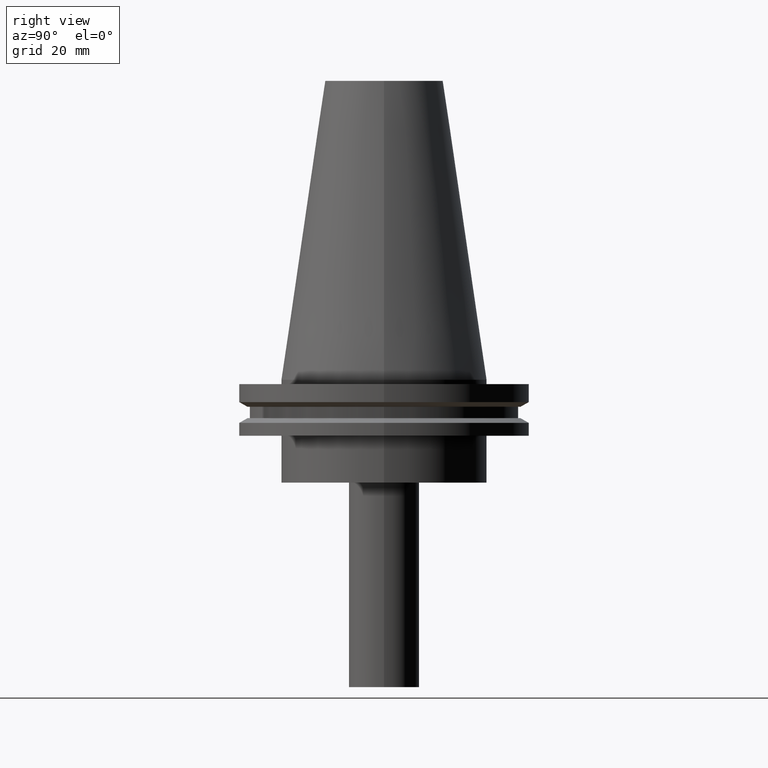
[diagram: clean part render]
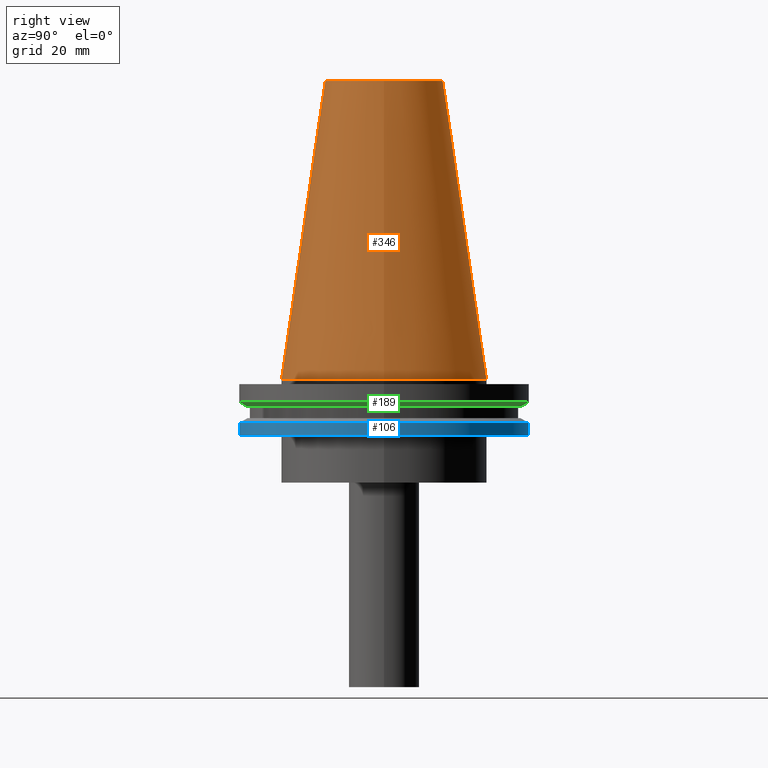
[diagram: same view with three faces highlighted in distinct colors, each labeled with its STEP entity id]
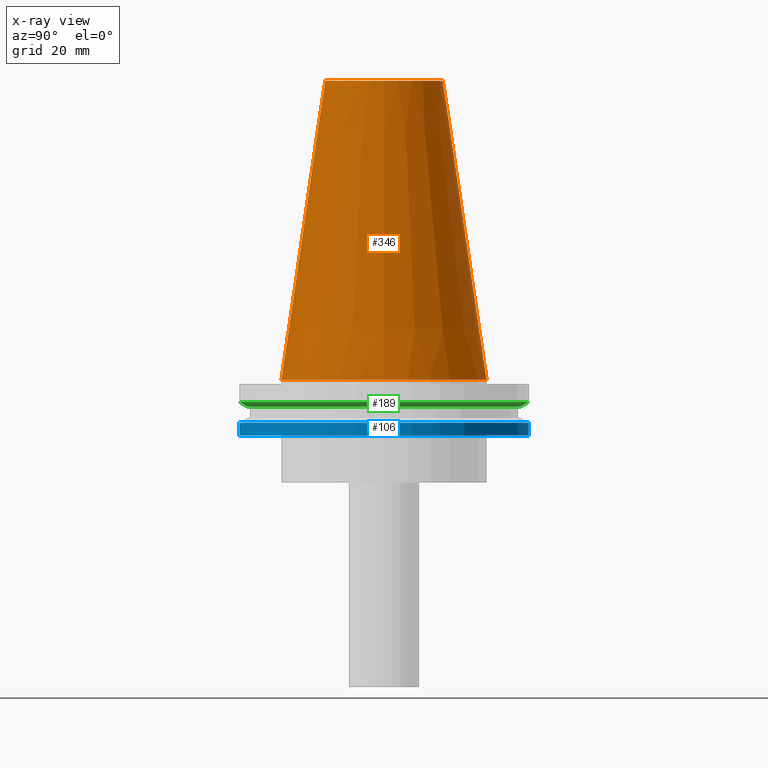
[diagram: x-ray of the same camera — body ghosted, the three highlighted faces saturated]
A machine part, right view with three faces highlighted in distinct colors.
The next image is the same camera in x-ray (body ghosted, the three faces saturated) — at least one of them is partly hidden behind the body in this view.
Their STEP definitions:

[orange] entity #346 — the highlighted conical surface has half-angle 8.297 deg.
#13 = CIRCLE ( 'NONE', #75, 34.92499999999999005 ) ;
#14 = CARTESIAN_POINT ( 'NONE',  ( 0.000000000000000000, 0.000000000000000000, 0.000000000000000000 ) ) ;
#20 = CARTESIAN_POINT ( 'NONE',  ( 34.92499999999999005, 0.000000000000000000, 0.000000000000000000 ) ) ;
#39 = CIRCLE ( 'NONE', #383, 20.10819343178871321 ) ;
#75 = AXIS2_PLACEMENT_3D ( 'NONE', #88, #264, #202 ) ;
#88 = CARTESIAN_POINT ( 'NONE',  ( 0.000000000000000000, 0.000000000000000000, 0.000000000000000000 ) ) ;
#91 = EDGE_LOOP ( 'NONE', ( #93 ) ) ;
#93 = ORIENTED_EDGE ( 'NONE', *, *, #375, .T. ) ;
#120 = AXIS2_PLACEMENT_3D ( 'NONE', #14, #227, #323 ) ;
#133 = EDGE_CURVE ( 'NONE', #141, #141, #39, .T. ) ;
#141 = VERTEX_POINT ( 'NONE', #258 ) ;
#192 = DIRECTION ( 'NONE',  ( -0.000000000000000000, -0.000000000000000000, 1.000000000000000000 ) ) ;
#202 = DIRECTION ( 'NONE',  ( 1.000000000000000000, 0.000000000000000000, 0.000000000000000000 ) ) ;
#227 = DIRECTION ( 'NONE',  ( 0.000000000000000000, 0.000000000000000000, -1.000000000000000000 ) ) ;
#230 = FACE_OUTER_BOUND ( 'NONE', #91, .T. ) ;
#240 = VERTEX_POINT ( 'NONE', #20 ) ;
#249 = CONICAL_SURFACE ( 'NONE', #120, 34.92499999999999005, 0.1448138465474119452 ) ;
#257 = DIRECTION ( 'NONE',  ( 1.000000000000000000, 0.000000000000000000, 0.000000000000000000 ) ) ;
#258 = CARTESIAN_POINT ( 'NONE',  ( 20.10819343178871321, 0.000000000000000000, 101.5999999999999801 ) ) ;
#264 = DIRECTION ( 'NONE',  ( -0.000000000000000000, -0.000000000000000000, 1.000000000000000000 ) ) ;
#290 = FACE_BOUND ( 'NONE', #358, .T. ) ;
#317 = CARTESIAN_POINT ( 'NONE',  ( 0.000000000000000000, 0.000000000000000000, 101.5999999999999801 ) ) ;
#323 = DIRECTION ( 'NONE',  ( -1.000000000000000000, 0.000000000000000000, 0.000000000000000000 ) ) ;
#346 = ADVANCED_FACE ( 'NONE', ( #290, #230 ), #249, .T. ) ;
#358 = EDGE_LOOP ( 'NONE', ( #381 ) ) ;
#375 = EDGE_CURVE ( 'NONE', #240, #240, #13, .T. ) ;
#381 = ORIENTED_EDGE ( 'NONE', *, *, #133, .F. ) ;
#383 = AXIS2_PLACEMENT_3D ( 'NONE', #317, #192, #257 ) ;

[blue] entity #106 — the highlighted cylindrical surface (bore or boss wall) has radius 49.215 mm, axis along (-0, -0, 1).
#9 = CYLINDRICAL_SURFACE ( 'NONE', #208, 49.21499999999998920 ) ;
#16 = DIRECTION ( 'NONE',  ( -0.000000000000000000, -0.000000000000000000, 1.000000000000000000 ) ) ;
#23 = CIRCLE ( 'NONE', #167, 49.21499999999998920 ) ;
#78 = CARTESIAN_POINT ( 'NONE',  ( 0.000000000000000000, 0.000000000000000000, -19.04999999999999716 ) ) ;
#84 = ORIENTED_EDGE ( 'NONE', *, *, #292, .F. ) ;
#92 = CARTESIAN_POINT ( 'NONE',  ( 49.21499999999998920, 0.000000000000000000, -19.04999999999999716 ) ) ;
#106 = ADVANCED_FACE ( 'NONE', ( #285, #165 ), #9, .T. ) ;
#112 = CARTESIAN_POINT ( 'NONE',  ( 0.000000000000000000, 0.000000000000000000, -14.65761014474876944 ) ) ;
#131 = CARTESIAN_POINT ( 'NONE',  ( 0.000000000000000000, 0.000000000000000000, 101.5999999999999943 ) ) ;
#165 = FACE_OUTER_BOUND ( 'NONE', #304, .T. ) ;
#167 = AXIS2_PLACEMENT_3D ( 'NONE', #78, #349, #170 ) ;
#168 = DIRECTION ( 'NONE',  ( 1.000000000000000000, 0.000000000000000000, 0.000000000000000000 ) ) ;
#170 = DIRECTION ( 'NONE',  ( 1.000000000000000000, 0.000000000000000000, 0.000000000000000000 ) ) ;
#201 = ORIENTED_EDGE ( 'NONE', *, *, #339, .T. ) ;
#208 = AXIS2_PLACEMENT_3D ( 'NONE', #131, #343, #225 ) ;
#225 = DIRECTION ( 'NONE',  ( 1.000000000000000000, 0.000000000000000000, 0.000000000000000000 ) ) ;
#285 = FACE_OUTER_BOUND ( 'NONE', #392, .T. ) ;
#292 = EDGE_CURVE ( 'NONE', #305, #305, #319, .T. ) ;
#296 = VERTEX_POINT ( 'NONE', #92 ) ;
#304 = EDGE_LOOP ( 'NONE', ( #201 ) ) ;
#305 = VERTEX_POINT ( 'NONE', #357 ) ;
#319 = CIRCLE ( 'NONE', #368, 49.21499999999998920 ) ;
#339 = EDGE_CURVE ( 'NONE', #296, #296, #23, .T. ) ;
#343 = DIRECTION ( 'NONE',  ( -0.000000000000000000, -0.000000000000000000, 1.000000000000000000 ) ) ;
#349 = DIRECTION ( 'NONE',  ( -0.000000000000000000, -0.000000000000000000, 1.000000000000000000 ) ) ;
#357 = CARTESIAN_POINT ( 'NONE',  ( 49.21499999999998920, 0.000000000000000000, -14.65761014474876944 ) ) ;
#368 = AXIS2_PLACEMENT_3D ( 'NONE', #112, #16, #168 ) ;
#392 = EDGE_LOOP ( 'NONE', ( #84 ) ) ;

[green] entity #189 — the highlighted conical surface has half-angle 60 deg.
#22 = VERTEX_POINT ( 'NONE', #298 ) ;
#33 = AXIS2_PLACEMENT_3D ( 'NONE', #146, #144, #261 ) ;
#41 = CIRCLE ( 'NONE', #241, 49.21500000000000341 ) ;
#67 = DIRECTION ( 'NONE',  ( 1.000000000000000000, 0.000000000000000000, 0.000000000000000000 ) ) ;
#71 = EDGE_CURVE ( 'NONE', #119, #119, #41, .T. ) ;
#76 = DIRECTION ( 'NONE',  ( -0.000000000000000000, -0.000000000000000000, 1.000000000000000000 ) ) ;
#87 = AXIS2_PLACEMENT_3D ( 'NONE', #107, #76, #194 ) ;
#107 = CARTESIAN_POINT ( 'NONE',  ( 0.000000000000000000, 0.000000000000000000, -9.204999999999991189 ) ) ;
#119 = VERTEX_POINT ( 'NONE', #378 ) ;
#144 = DIRECTION ( 'NONE',  ( -0.000000000000000000, -0.000000000000000000, 1.000000000000000000 ) ) ;
#146 = CARTESIAN_POINT ( 'NONE',  ( 0.000000000000000000, 0.000000000000000000, -9.204999999999991189 ) ) ;
#151 = ORIENTED_EDGE ( 'NONE', *, *, #233, .T. ) ;
#166 = FACE_OUTER_BOUND ( 'NONE', #175, .T. ) ;
#175 = EDGE_LOOP ( 'NONE', ( #276 ) ) ;
#189 = ADVANCED_FACE ( 'NONE', ( #166, #344 ), #229, .T. ) ;
#194 = DIRECTION ( 'NONE',  ( 1.000000000000000000, 0.000000000000000000, 0.000000000000000000 ) ) ;
#203 = CIRCLE ( 'NONE', #33, 46.43919780457007818 ) ;
#229 = CONICAL_SURFACE ( 'NONE', #87, 46.43919780457007818, 1.047197551196575205 ) ;
#233 = EDGE_CURVE ( 'NONE', #22, #22, #203, .T. ) ;
#241 = AXIS2_PLACEMENT_3D ( 'NONE', #308, #335, #67 ) ;
#261 = DIRECTION ( 'NONE',  ( 1.000000000000000000, 0.000000000000000000, 0.000000000000000000 ) ) ;
#276 = ORIENTED_EDGE ( 'NONE', *, *, #71, .F. ) ;
#298 = CARTESIAN_POINT ( 'NONE',  ( 46.43919780457007818, 0.000000000000000000, -9.204999999999991189 ) ) ;
#308 = CARTESIAN_POINT ( 'NONE',  ( 0.000000000000000000, 0.000000000000000000, -7.602389855251287187 ) ) ;
#329 = EDGE_LOOP ( 'NONE', ( #151 ) ) ;
#335 = DIRECTION ( 'NONE',  ( -0.000000000000000000, -0.000000000000000000, 1.000000000000000000 ) ) ;
#344 = FACE_BOUND ( 'NONE', #329, .T. ) ;
#378 = CARTESIAN_POINT ( 'NONE',  ( 49.21500000000000341, 0.000000000000000000, -7.602389855251287187 ) ) ;